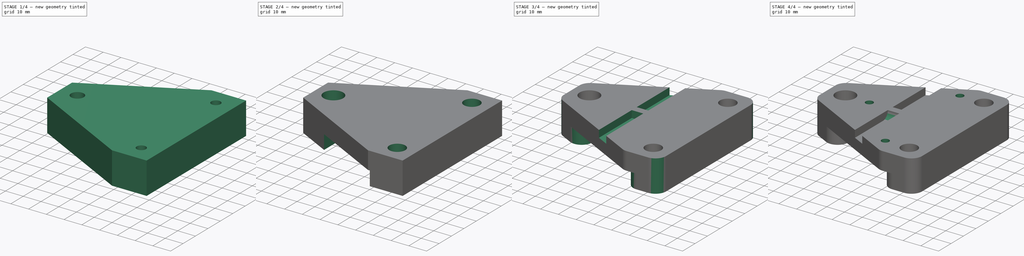
[diagram: build sequence overview — one tinted view per stage of 4, left to right]
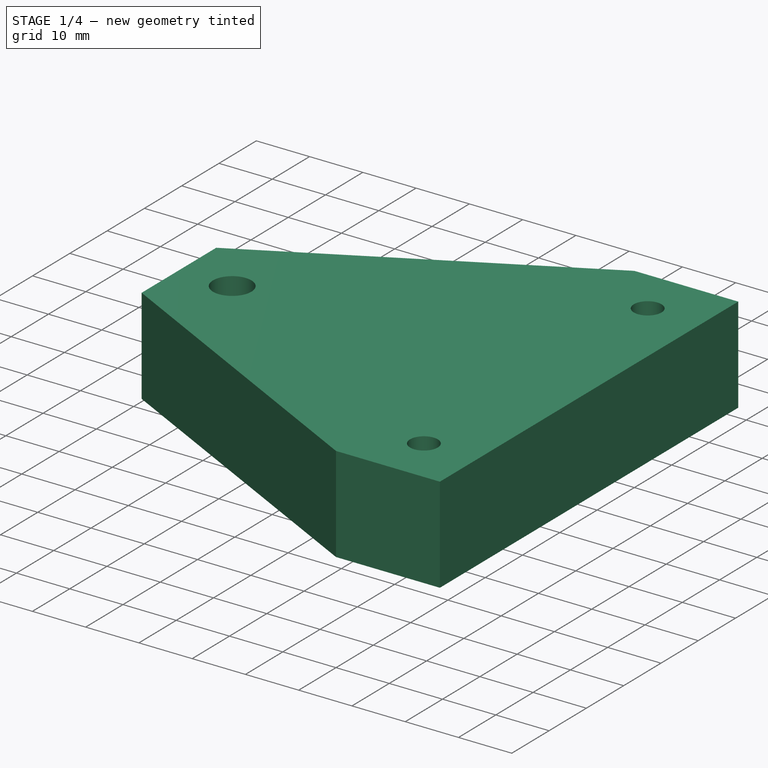
[diagram: stage 1 of 4 — iso view after this stage's code; geometry added in this stage tinted green]
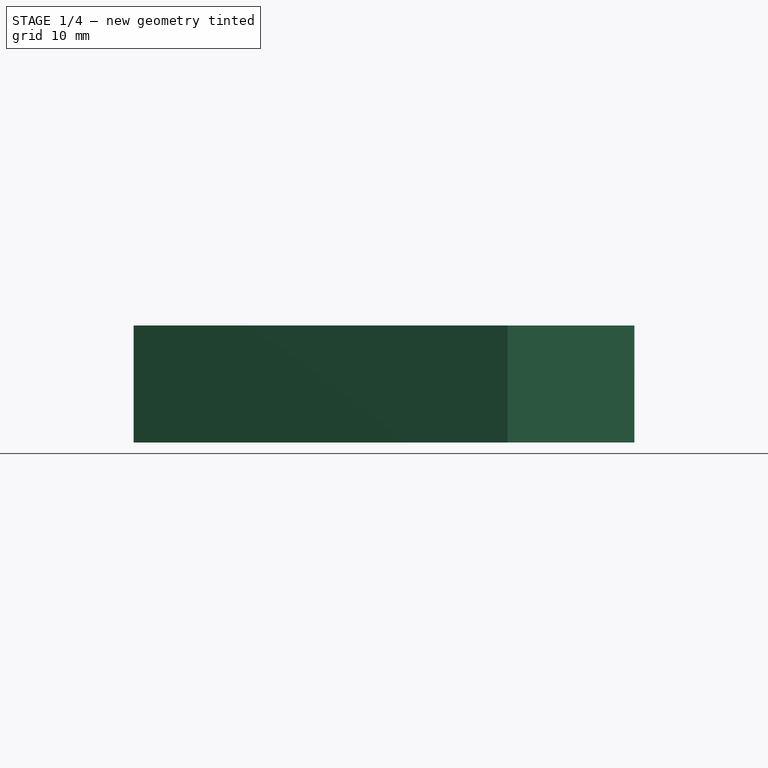
[diagram: stage 1 of 4 — front view after this stage's code; geometry added in this stage tinted green]
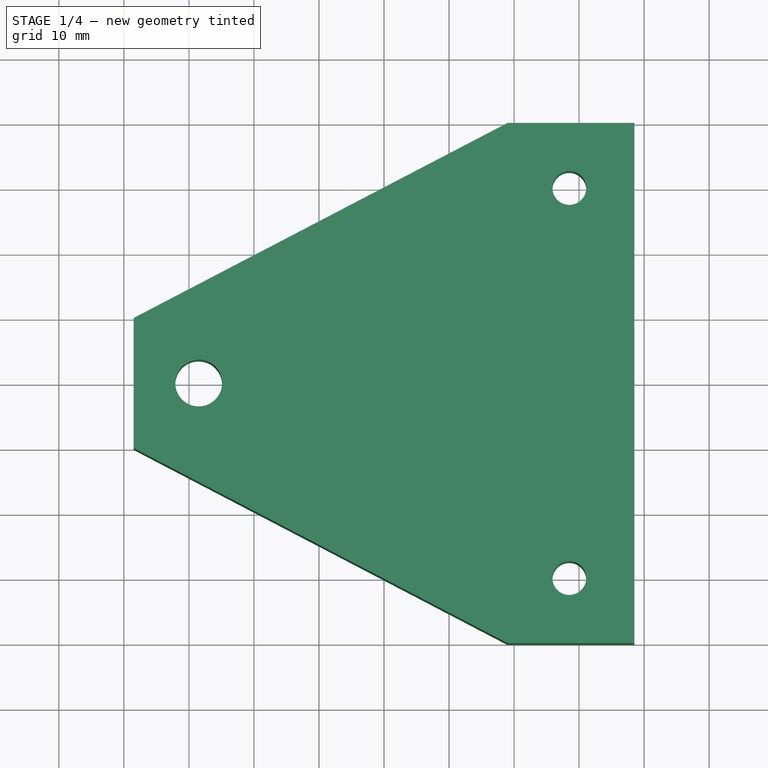
[diagram: stage 1 of 4 — top view after this stage's code; geometry added in this stage tinted green]
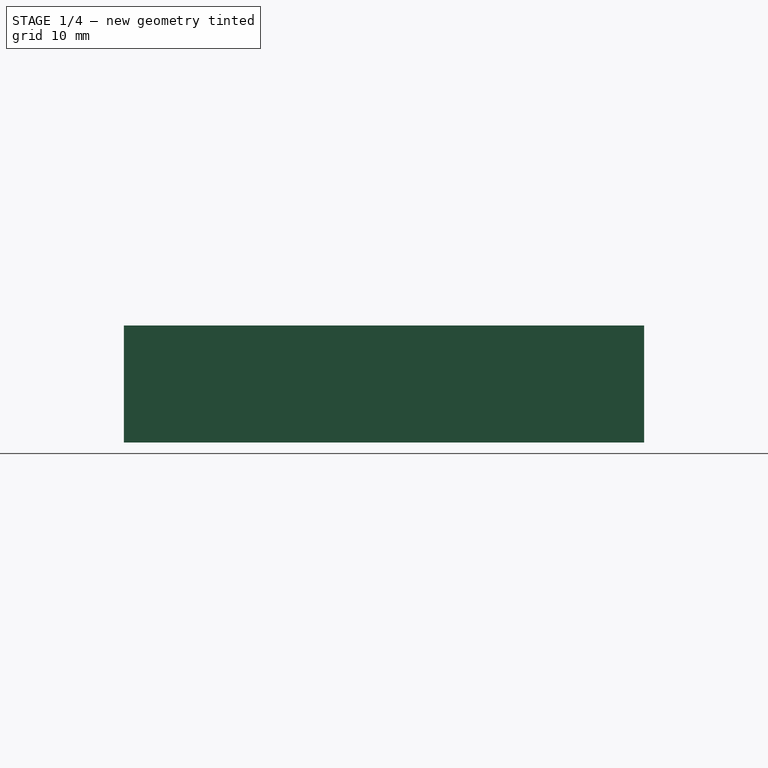
[diagram: stage 1 of 4 — right view after this stage's code; geometry added in this stage tinted green]
FCSTD DOCUMENT  (FreeCAD 1.0R39109 (Git))
Label: ARMTargetGantryV2
License: All rights reserved
LicenseURL: https://en.wikipedia.org/wiki/All_rights_reserved
objects: Sketcher::SketchObject×7, PartDesign::Pocket×5, PartDesign::Fillet×3, PartDesign::Pad×1, PartDesign::Body×1
note: 42 computed .brp shape members not serialized (recipe doc carries the construction recipe); baked Part::Feature solids carry a one-line shape summary decoded from their .brp

FEATURE [Sketcher::SketchObject] Sketch
  ArcFitTolerance = 1e-06
  AttachmentSupport = -> [XY_Plane]
  FullyConstrained = true
  MakeInternals = false
  MapMode = 5
  sketch-geometry (29):
    g0: LineSegment [constr] StartX=-19 StartY=-100 StartZ=0 EndX=19 EndY=-100 EndZ=0
    g1: LineSegment [constr] StartX=19 StartY=-100 StartZ=0 EndX=19 EndY=100 EndZ=0
    g2: LineSegment [constr] StartX=19 StartY=100 StartZ=0 EndX=-19 EndY=100 EndZ=0
    g3: LineSegment [constr] StartX=-19 StartY=100 StartZ=0 EndX=-19 EndY=-100 EndZ=0
    g4: GeomPoint [constr] X=0 Y=0 Z=0
    g5: LineSegment [constr] StartX=-4 StartY=-100 StartZ=0 EndX=4 EndY=-100 EndZ=0
    g6: LineSegment [constr] StartX=4 StartY=-100 StartZ=0 EndX=4 EndY=100 EndZ=0
    g7: LineSegment [constr] StartX=4 StartY=100 StartZ=0 EndX=-4 EndY=100 EndZ=0
    g8: LineSegment [constr] StartX=-4 StartY=100 StartZ=0 EndX=-4 EndY=-100 EndZ=0
    g9: GeomPoint [constr] X=0 Y=0 Z=0
    g10: LineSegment [constr] StartX=0 StartY=0 StartZ=0 EndX=-19 EndY=-3.7e-15 EndZ=0
    g11: LineSegment [constr] StartX=-19 StartY=-3.7e-15 StartZ=0 EndX=-28.5 EndY=0 EndZ=0
    g12: LineSegment [constr] StartX=0 StartY=0 StartZ=0 EndX=19 EndY=-3.7e-15 EndZ=0
    g13: LineSegment [constr] StartX=19 StartY=-3.7e-15 StartZ=0 EndX=28.5 EndY=0 EndZ=0
    g14: LineSegment [constr] StartX=-28.5 StartY=0 StartZ=0 EndX=-38.5 EndY=0 EndZ=0
    g15: LineSegment StartX=-38.5 StartY=0 StartZ=0 EndX=-38.5 EndY=10 EndZ=0
    g16: LineSegment StartX=-38.5 StartY=0 StartZ=0 EndX=-38.5 EndY=-10 EndZ=0
    g17: LineSegment [constr] StartX=28.5 StartY=0 StartZ=0 EndX=28.5 EndY=30 EndZ=0
    g18: LineSegment [constr] StartX=28.5 StartY=0 StartZ=0 EndX=28.5 EndY=-30 EndZ=0
    g19: LineSegment [constr] StartX=28.5 StartY=0 StartZ=0 EndX=38.5 EndY=0 EndZ=0
    g20: LineSegment StartX=38.5 StartY=0 StartZ=0 EndX=38.5 EndY=40 EndZ=0
    g21: LineSegment StartX=38.5 StartY=0 StartZ=0 EndX=38.5 EndY=-40 EndZ=0
    g22: LineSegment StartX=38.5 StartY=40 StartZ=0 EndX=19 EndY=40 EndZ=0
    g23: LineSegment StartX=38.5 StartY=-40 StartZ=0 EndX=19 EndY=-40 EndZ=0
    g24: LineSegment StartX=-38.5 StartY=10 StartZ=0 EndX=19 EndY=40 EndZ=0
    g25: LineSegment StartX=-38.5 StartY=-10 StartZ=0 EndX=19 EndY=-40 EndZ=0
    g26: Circle CenterX=-28.5 CenterY=0 CenterZ=0 NormalX=0 NormalY=0 NormalZ=1 AngleXU=0 Radius=3.6
    g27: Circle CenterX=28.5 CenterY=-30 CenterZ=0 NormalX=0 NormalY=0 NormalZ=1 AngleXU=0 Radius=2.6
    g28: Circle CenterX=28.5 CenterY=30 CenterZ=0 NormalX=0 NormalY=0 NormalZ=1 AngleXU=0 Radius=2.6
  constraints (74):
    c: Coincident(g0,g1)
    c: Coincident(g1,g2)
    c: Coincident(g2,g3)
    c: Coincident(g3,g0)
    c: Horizontal(g0)
    c: Horizontal(g2)
    c: Vertical(g1)
    c: Vertical(g3)
    c: Symmetric(g2,g0,g4)
    c: Distance(g1,g3) = 38
    c: Distance(g0,g2) = 200
    c: Coincident(g4,g-1)
    c: Coincident(g5,g6)
    c: Coincident(g6,g7)
    c: Coincident(g7,g8)
    c: Coincident(g8,g5)
    c: Horizontal(g5)
    c: Horizontal(g7)
    c: Vertical(g6)
    c: Vertical(g8)
    c: Symmetric(g7,g5,g9)
    c: Distance(g6,g8) = 8
    c: Coincident(g9,g4)
    c: PointOnObject(g6,g2)
    c: Coincident(g10,g4)
    c: Symmetric(g3,g3,g10)
    c: Distance(g11) = 9.5
    c: Coincident(g11,g10)
    c: PointOnObject(g11,g-1)
    c: Coincident(g12,g4)
    c: Symmetric(g1,g1,g12)
    c: Distance(g13) = 9.5
    c: Coincident(g13,g12)
    c: PointOnObject(g13,g-1)
    c: Distance(g14) = 10
    c: Coincident(g14,g11)
    c: PointOnObject(g14,g-1)
    c: Distance(g15) = 10
    c: Coincident(g15,g14)
    c: Vertical(g15)
    c: Distance(g16) = 10
    c: Coincident(g16,g14)
    c: Vertical(g16)
    c: Distance(g17) = 30
    c: Coincident(g17,g13)
    c: Vertical(g17)
    c: Distance(g18) = 30
    c: Coincident(g18,g13)
    c: Vertical(g18)
    c: Distance(g19) = 10
    c: Coincident(g19,g13)
    c: PointOnObject(g19,g-1)
    c: Distance(g20) = 40
    c: Coincident(g20,g19)
    c: Vertical(g20)
    c: Distance(g21) = 40
    c: Coincident(g21,g19)
    c: Vertical(g21)
    c: Coincident(g22,g20)
    c: PointOnObject(g22,g1)
    c: Horizontal(g22)
    c: Coincident(g23,g21)
    c: PointOnObject(g23,g1)
    c: Horizontal(g23)
    c: Coincident(g24,g15)
    c: Coincident(g24,g22)
    c: Coincident(g25,g16)
    c: Coincident(g25,g23)
    c: Diameter(g26) = 7.2
    c: Coincident(g26,g11)
    c: Diameter(g27) = 5.2
    c: Coincident(g27,g18)
    c: Diameter(g28) = 5.2
    c: Coincident(g28,g17)
FEATURE [PartDesign::Pad] Pad
  Direction = (0,0,1)
  Length = 18
  Length2 = 10
  Profile = -> Sketch
  ReferenceAxis = -> Sketch [N_Axis]
  Refine = true
  Suppressed = false
  Type = 0
FEATURE [Sketcher::SketchObject] Sketch001
  ArcFitTolerance = 1e-06
  AttachmentSupport = -> [Pad]
  ExternalGeometry = -> [Pad]
  FullyConstrained = true
  MakeInternals = false
  MapMode = 5
  Placement = pos=(0,0,0) rot=(1,0,0;3.14159rad)
  sketch-geometry (1):
    g0: Circle CenterX=-28.5 CenterY=0 CenterZ=0 NormalX=0 NormalY=0 NormalZ=1 AngleXU=0 Radius=3.6
  constraints (2):
    c: Diameter(g0) = 7.2
    c: Coincident(g0,g-3)
FEATURE [PartDesign::Pocket] Pocket
  BaseFeature = -> Pad
  Direction = (0,0,1)
  Length = 3
  Length2 = 5
  Profile = -> Sketch001
  ReferenceAxis = -> Sketch001 [N_Axis]
  Refine = true
  Suppressed = false
  Type = 0
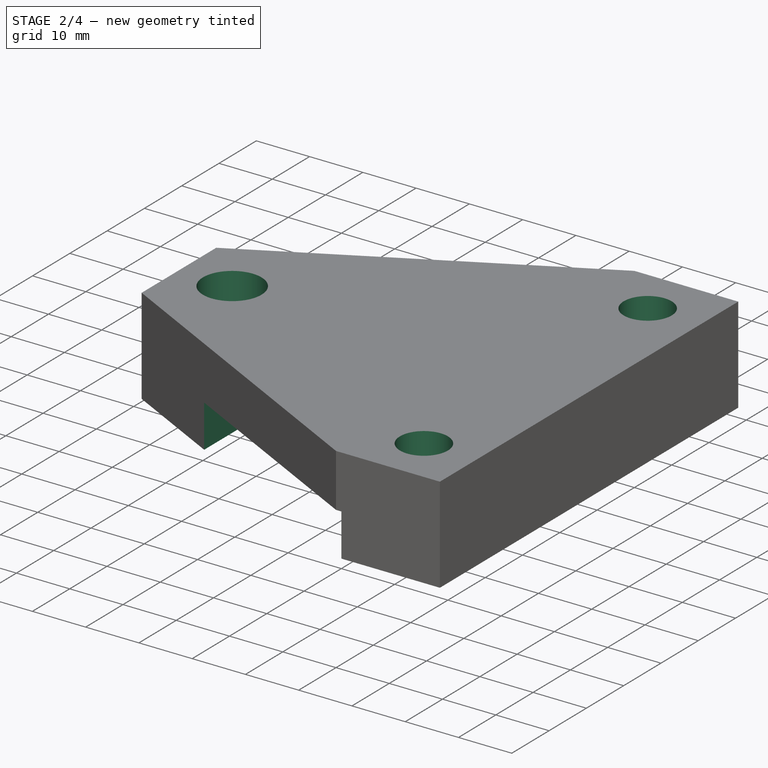
[diagram: stage 2 of 4 — iso view after this stage's code; geometry added in this stage tinted green]
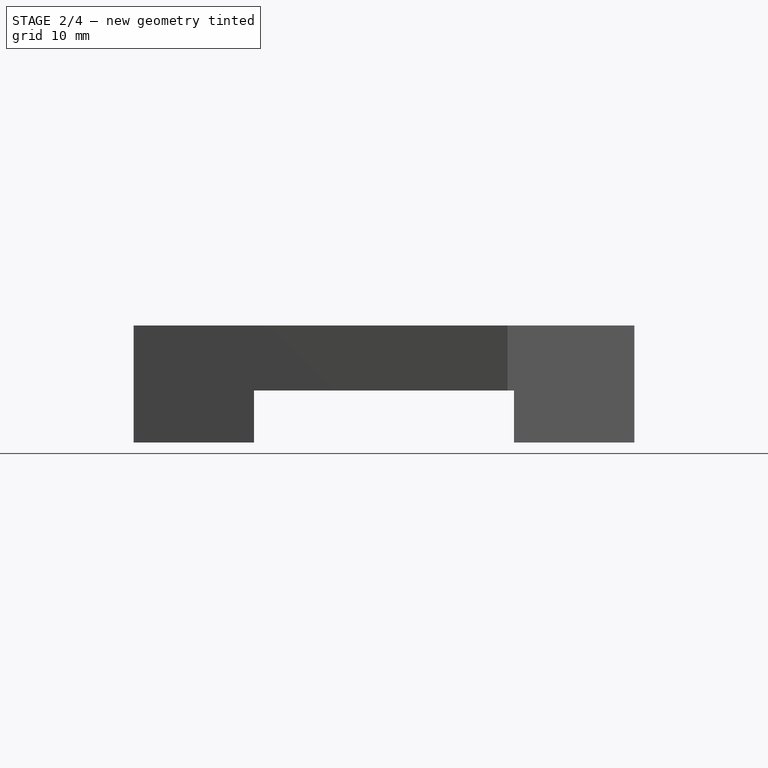
[diagram: stage 2 of 4 — front view after this stage's code; geometry added in this stage tinted green]
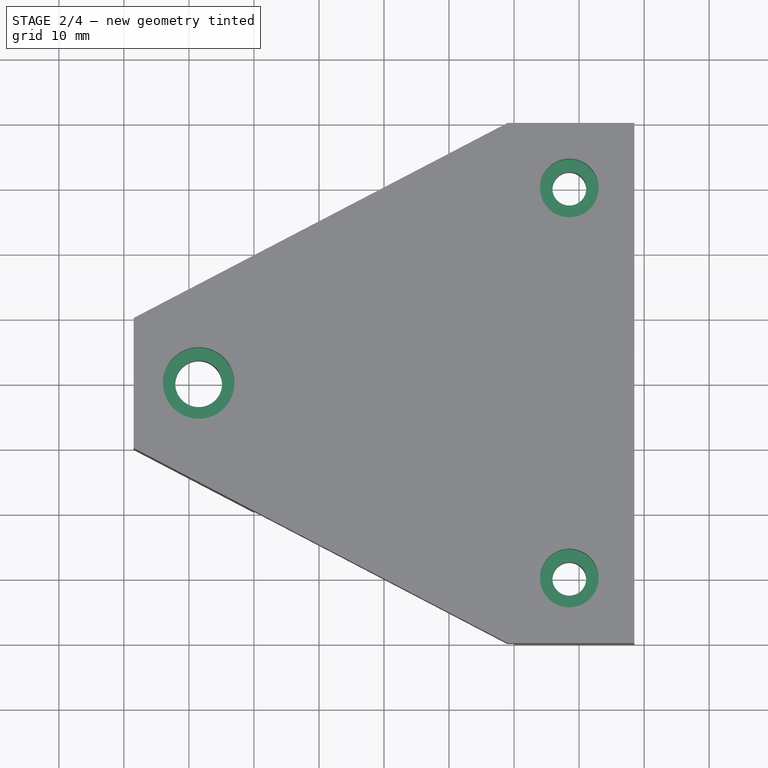
[diagram: stage 2 of 4 — top view after this stage's code; geometry added in this stage tinted green]
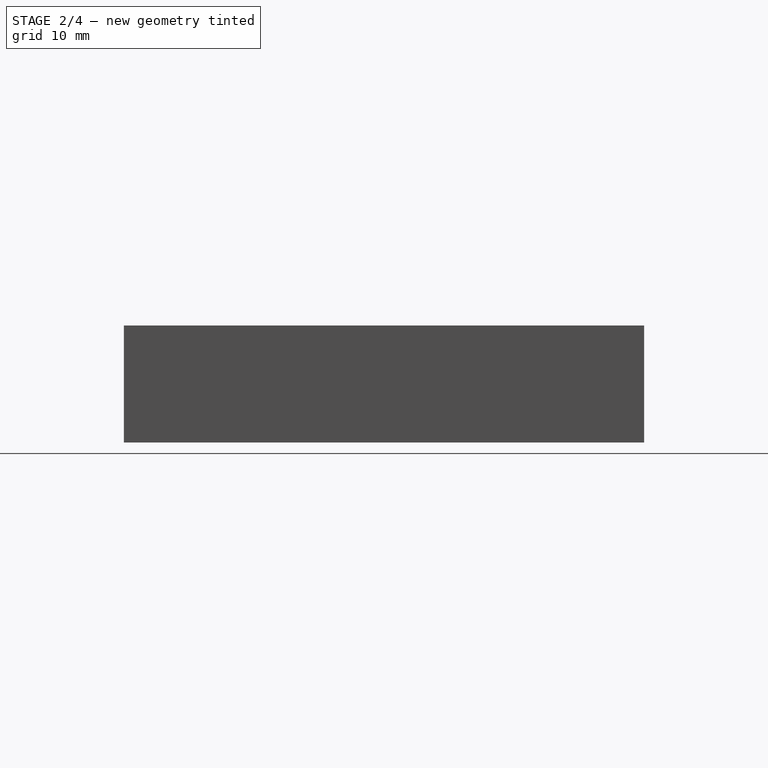
[diagram: stage 2 of 4 — right view after this stage's code; geometry added in this stage tinted green]
FEATURE [Sketcher::SketchObject] Sketch002
  ArcFitTolerance = 1e-06
  AttachmentSupport = -> [Pocket]
  FullyConstrained = true
  MakeInternals = false
  MapMode = 5
  Placement = pos=(0,0,0) rot=(1,0,0;3.14159rad)
  sketch-geometry (5):
    g0: LineSegment StartX=-20 StartY=-50 StartZ=0 EndX=20 EndY=-50 EndZ=0
    g1: LineSegment StartX=20 StartY=-50 StartZ=0 EndX=20 EndY=50 EndZ=0
    g2: LineSegment StartX=20 StartY=50 StartZ=0 EndX=-20 EndY=50 EndZ=0
    g3: LineSegment StartX=-20 StartY=50 StartZ=0 EndX=-20 EndY=-50 EndZ=0
    g4: GeomPoint [constr] X=0 Y=0 Z=0
  constraints (12):
    c: Coincident(g0,g1)
    c: Coincident(g1,g2)
    c: Coincident(g2,g3)
    c: Coincident(g3,g0)
    c: Horizontal(g0)
    c: Horizontal(g2)
    c: Vertical(g1)
    c: Vertical(g3)
    c: Symmetric(g2,g0,g4)
    c: Distance(g1,g3) = 40
    c: Distance(g0,g2) = 100
    c: Coincident(g4,g-1)
FEATURE [PartDesign::Pocket] Pocket001
  BaseFeature = -> Pocket
  Direction = (0,0,1)
  Length = 8
  Length2 = 5
  Profile = -> Sketch002
  ReferenceAxis = -> Sketch002 [N_Axis]
  Refine = true
  Suppressed = false
  Type = 0
FEATURE [Sketcher::SketchObject] Sketch003
  ArcFitTolerance = 1e-06
  AttachmentSupport = -> [Pocket001]
  ExternalGeometry = -> [Pocket001]
  FullyConstrained = true
  MakeInternals = false
  MapMode = 5
  Placement = pos=(0,0,18) rot=(0,0,1;0rad)
  sketch-geometry (3):
    g0: Circle CenterX=-28.5 CenterY=0 CenterZ=0 NormalX=0 NormalY=0 NormalZ=1 AngleXU=0 Radius=5.5
    g1: Circle CenterX=28.5 CenterY=30 CenterZ=0 NormalX=0 NormalY=0 NormalZ=1 AngleXU=0 Radius=4.5
    g2: Circle CenterX=28.5 CenterY=-30 CenterZ=0 NormalX=0 NormalY=0 NormalZ=1 AngleXU=0 Radius=4.5
  constraints (6):
    c: Diameter(g0) = 11
    c: Coincident(g0,g-5)
    c: Diameter(g1) = 9
    c: Coincident(g1,g-3)
    c: Diameter(g2) = 9
    c: Coincident(g2,g-4)
FEATURE [PartDesign::Pocket] Pocket002
  BaseFeature = -> Pocket001
  Direction = (0,0,-1)
  Length = 6
  Length2 = 5
  Profile = -> Sketch003
  ReferenceAxis = -> Sketch003 [N_Axis]
  Refine = true
  Suppressed = false
  Type = 0
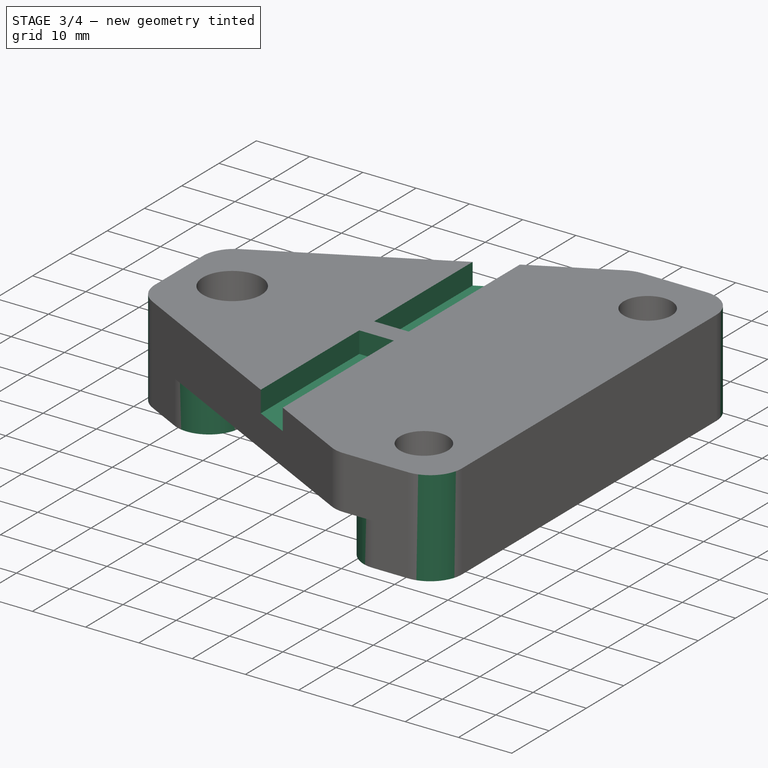
[diagram: stage 3 of 4 — iso view after this stage's code; geometry added in this stage tinted green]
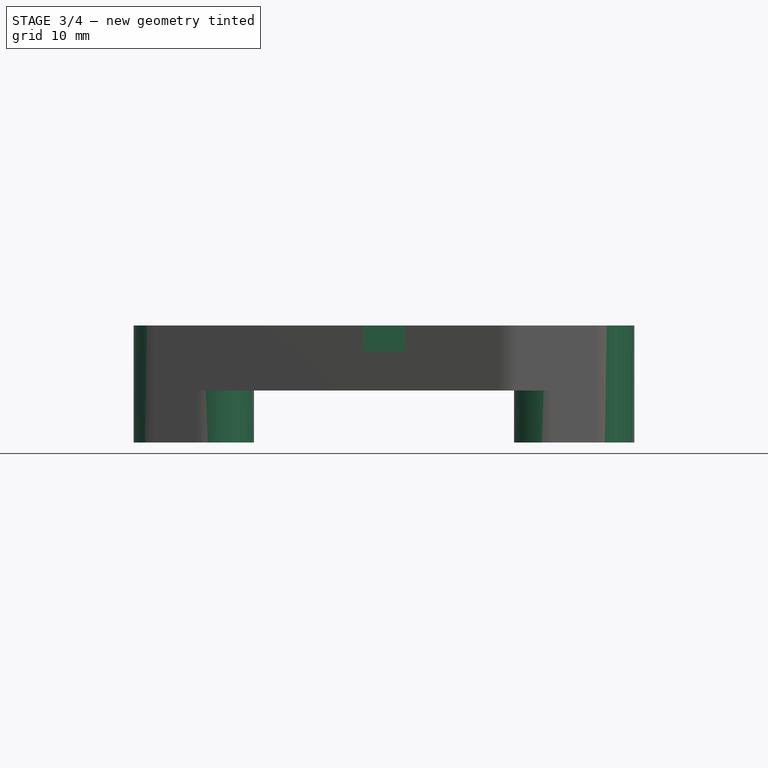
[diagram: stage 3 of 4 — front view after this stage's code; geometry added in this stage tinted green]
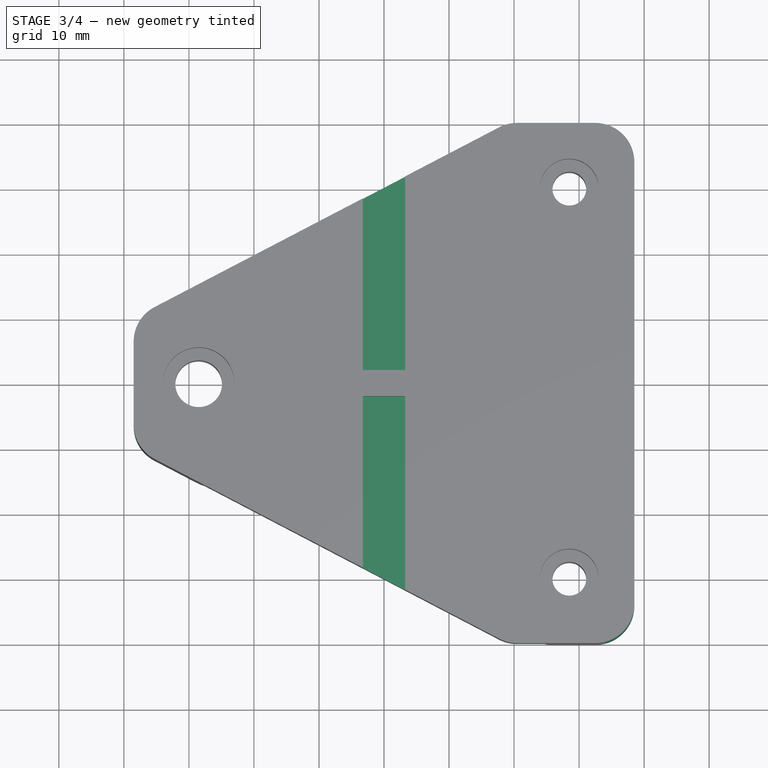
[diagram: stage 3 of 4 — top view after this stage's code; geometry added in this stage tinted green]
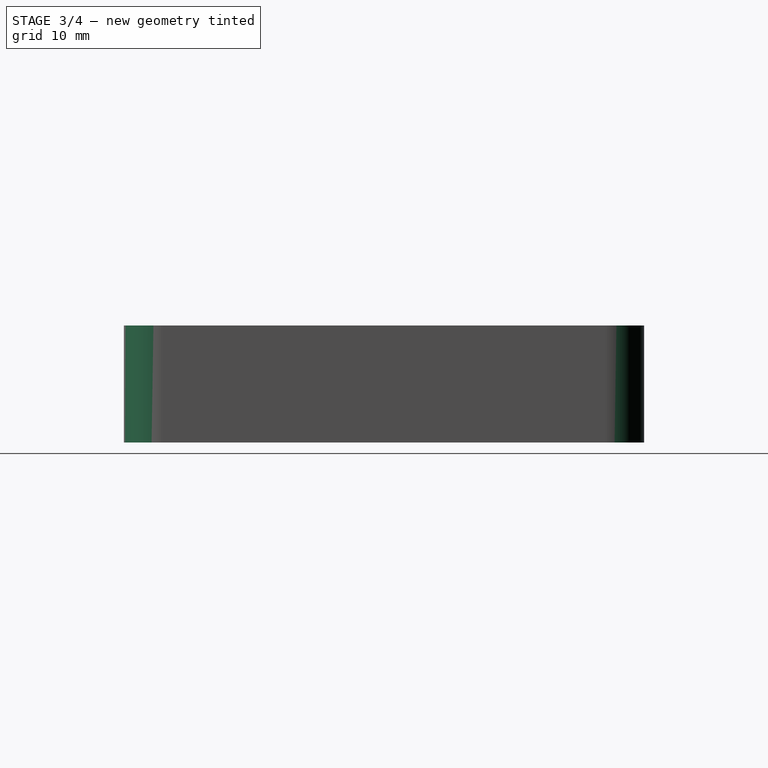
[diagram: stage 3 of 4 — right view after this stage's code; geometry added in this stage tinted green]
FEATURE [PartDesign::Fillet] Fillet
  Base = -> Pocket002 [Edge33,Edge18,Edge12,Edge2]
  BaseFeature = -> Pocket002
  Radius = 6
  Refine = true
  SupportTransform = false
  Suppressed = false
  UseAllEdges = false
FEATURE [PartDesign::Fillet] Fillet001
  Base = -> Fillet [Edge3,Edge16,Edge7,Edge38,Edge51,Edge41]
  BaseFeature = -> Fillet
  Radius = 6
  Refine = true
  SupportTransform = false
  Suppressed = false
  UseAllEdges = false
FEATURE [Sketcher::SketchObject] Sketch004
  ArcFitTolerance = 1e-06
  AttachmentSupport = -> [Fillet001]
  FullyConstrained = false
  MakeInternals = false
  MapMode = 5
  Placement = pos=(0,0,18) rot=(0,0,1;0rad)
  sketch-geometry (10):
    g0: LineSegment StartX=-3.25 StartY=-35 StartZ=0 EndX=3.25 EndY=-35 EndZ=0
    g1: LineSegment StartX=3.25 StartY=-35 StartZ=0 EndX=3.25 EndY=-2 EndZ=0
    g2: LineSegment StartX=3.25 StartY=35 StartZ=0 EndX=-3.25 EndY=35 EndZ=0
    g3: LineSegment StartX=-3.25 StartY=35 StartZ=0 EndX=-3.25 EndY=2 EndZ=0
    g4: GeomPoint [constr] X=0 Y=0 Z=0
    g5: LineSegment StartX=-3.25 StartY=-2 StartZ=0 EndX=3.25 EndY=-2 EndZ=0
    g6: LineSegment StartX=3.25 StartY=2 StartZ=0 EndX=-3.25 EndY=2 EndZ=0
    g7: GeomPoint [constr] X=0 Y=0 Z=0
    g8: LineSegment StartX=3.25 StartY=2 StartZ=0 EndX=3.25 EndY=35 EndZ=0
    g9: LineSegment StartX=-3.25 StartY=-2 StartZ=0 EndX=-3.25 EndY=-35 EndZ=0
  constraints (21):
    c: Coincident(g0,g1)
    c: Coincident(g8,g2)
    c: Coincident(g2,g3)
    c: Coincident(g9,g0)
    c: Horizontal(g0)
    c: Horizontal(g2)
    c: Vertical(g1)
    c: Vertical(g3)
    c: Symmetric(g2,g0,g4)
    c: Distance(g1,g9) = 6.5
    c: Distance(g0,g2) = 70
    c: Coincident(g4,g-1)
    c: Horizontal(g5)
    c: Horizontal(g6)
    c: Coincident(g7,g4)
    c: PointOnObject(g6,g8)
    c: PointOnObject(g5,g9)
    c: Coincident(g1,g5)
    c: PointOnObject(g8,g6)
    c: Coincident(g3,g6)
    c: PointOnObject(g9,g5)
FEATURE [PartDesign::Pocket] Pocket003
  BaseFeature = -> Fillet001
  Direction = (0,0,-1)
  Length = 4
  Length2 = 5
  Profile = -> Sketch004
  ReferenceAxis = -> Sketch004 [N_Axis]
  Refine = true
  Suppressed = false
  Type = 0
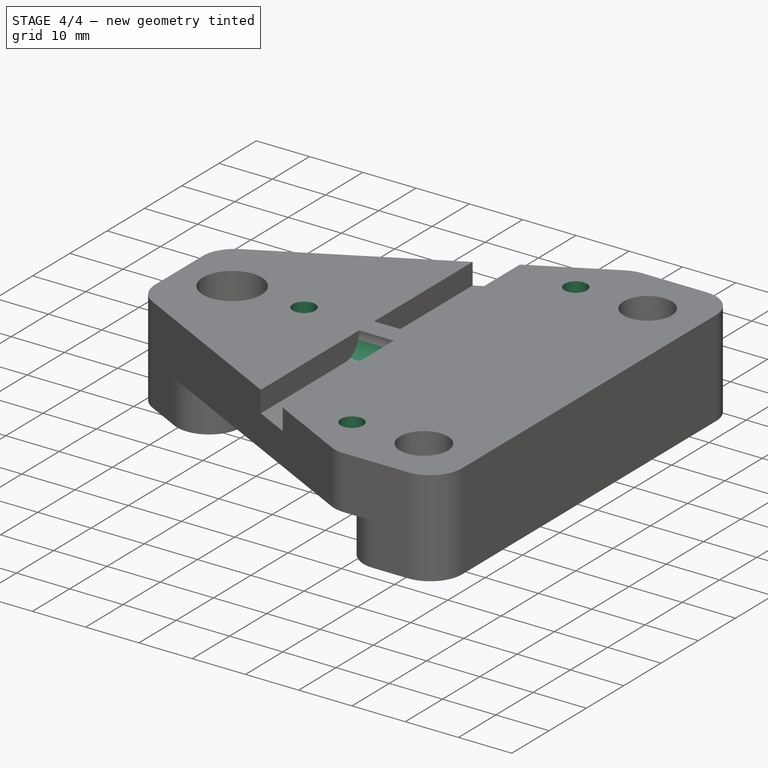
[diagram: stage 4 of 4 — iso view after this stage's code; geometry added in this stage tinted green]
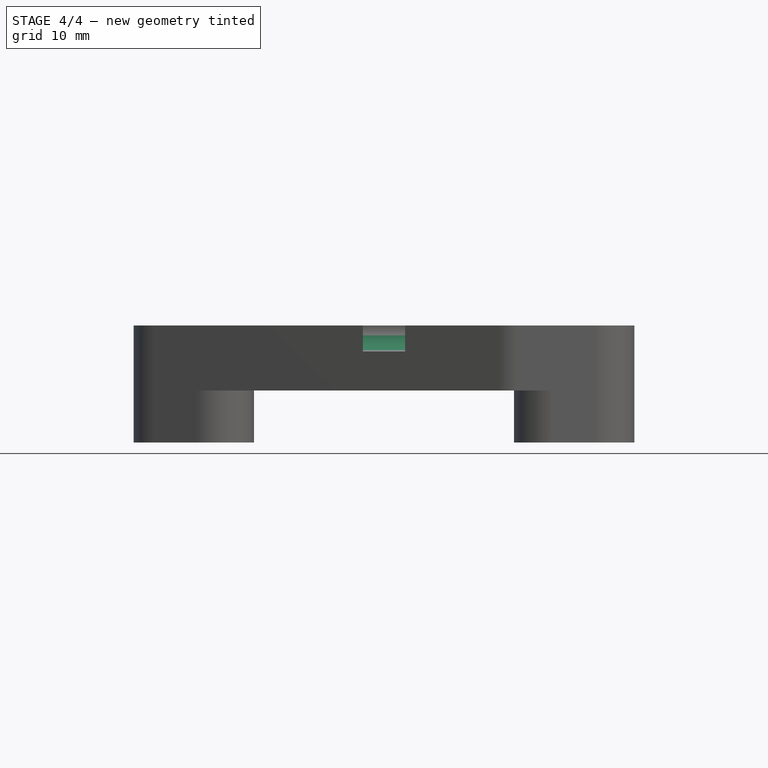
[diagram: stage 4 of 4 — front view after this stage's code; geometry added in this stage tinted green]
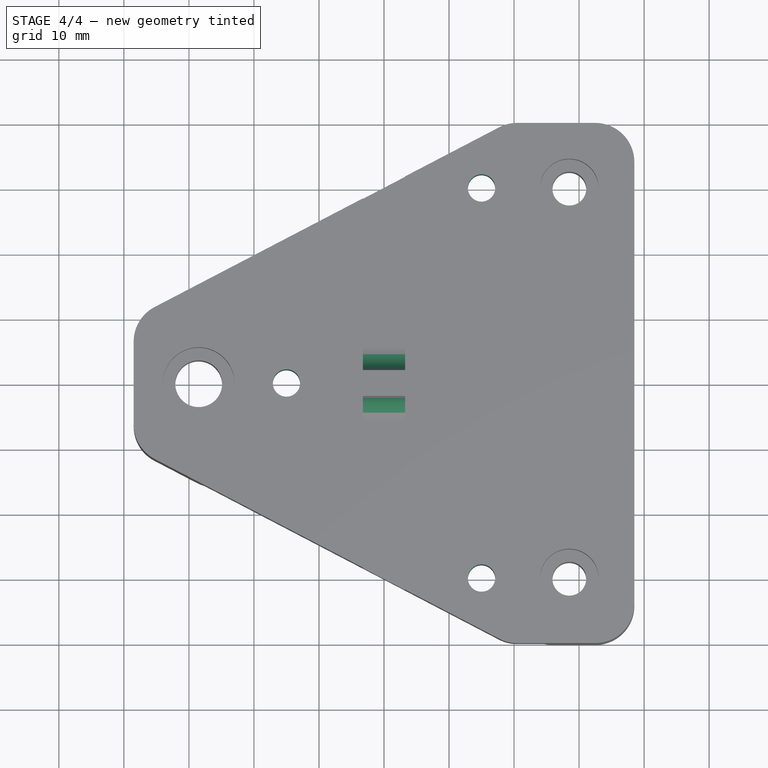
[diagram: stage 4 of 4 — top view after this stage's code; geometry added in this stage tinted green]
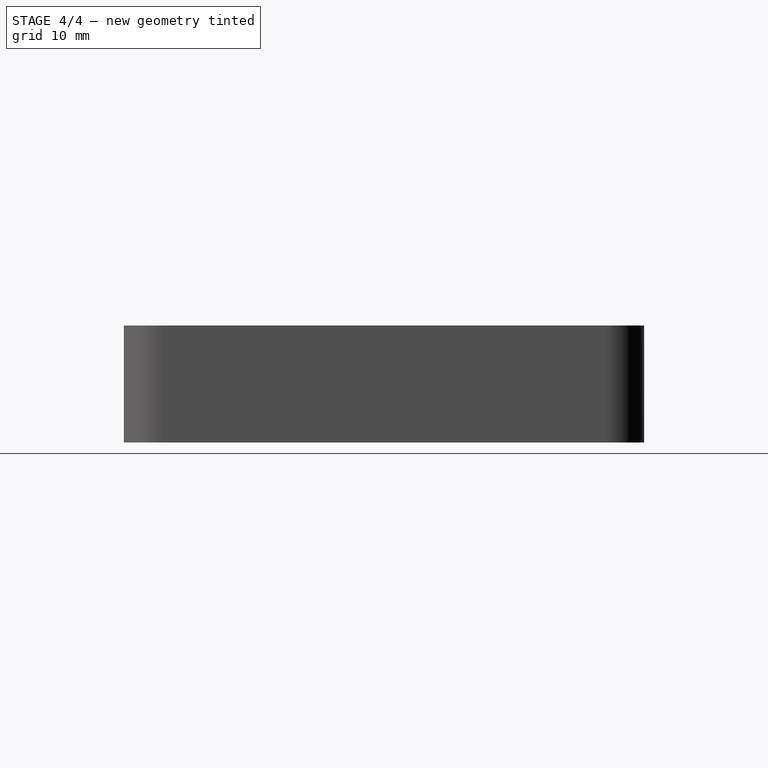
[diagram: stage 4 of 4 — right view after this stage's code; geometry added in this stage tinted green]
FEATURE [Sketcher::SketchObject] Sketch005
  ArcFitTolerance = 1e-06
  AttachmentSupport = -> [Pocket003]
  FullyConstrained = true
  MakeInternals = false
  MapMode = 5
  Placement = pos=(0,0,18) rot=(0,0,1;0rad)
  sketch-geometry (7):
    g0: LineSegment [constr] StartX=0 StartY=0 StartZ=0 EndX=-15 EndY=0 EndZ=0
    g1: LineSegment [constr] StartX=0 StartY=0 StartZ=0 EndX=15 EndY=0 EndZ=0
    g2: LineSegment [constr] StartX=15 StartY=0 StartZ=0 EndX=15 EndY=30 EndZ=0
    g3: LineSegment [constr] StartX=15 StartY=0 StartZ=0 EndX=15 EndY=-30 EndZ=0
    g4: Circle CenterX=-15 CenterY=0 CenterZ=0 NormalX=0 NormalY=0 NormalZ=1 AngleXU=0 Radius=2.1
    g5: Circle CenterX=15 CenterY=-30 CenterZ=0 NormalX=0 NormalY=0 NormalZ=1 AngleXU=0 Radius=2.1
    g6: Circle CenterX=15 CenterY=30 CenterZ=0 NormalX=0 NormalY=0 NormalZ=1 AngleXU=0 Radius=2.1
  constraints (18):
    c: Distance(g0) = 15
    c: Coincident(g0,g-1)
    c: PointOnObject(g0,g-1)
    c: Distance(g1) = 15
    c: Coincident(g1,g0)
    c: PointOnObject(g1,g-1)
    c: Distance(g2) = 30
    c: Coincident(g2,g1)
    c: Vertical(g2)
    c: Distance(g3) = 30
    c: Coincident(g3,g1)
    c: Vertical(g3)
    c: Diameter(g4) = 4.2
    c: Coincident(g4,g0)
    c: Diameter(g5) = 4.2
    c: Coincident(g5,g3)
    c: Diameter(g6) = 4.2
    c: Coincident(g6,g2)
FEATURE [PartDesign::Pocket] Pocket004
  BaseFeature = -> Pocket003
  Direction = (0,0,-1)
  Length = 10
  Length2 = 5
  Profile = -> Sketch005
  ReferenceAxis = -> Sketch005 [N_Axis]
  Refine = true
  Suppressed = false
  Type = 0
FEATURE [Sketcher::SketchObject] Sketch006
  ArcFitTolerance = 1e-06
  AttachmentSupport = -> [Pocket004]
  ExternalGeometry = -> [Pocket004]
  FullyConstrained = true
  MakeInternals = false
  MapMode = 5
  Placement = pos=(0,0,18) rot=(0,0,1;0rad)
FEATURE [PartDesign::Fillet] Fillet002
  Base = -> Pocket004 [Edge95,Edge63]
  BaseFeature = -> Pocket004
  Radius = 3.75
  Refine = true
  SupportTransform = false
  Suppressed = false
  UseAllEdges = false
FEATURE [PartDesign::Body] Body
  AllowCompound = false
  Group = -> [Sketch,Pad,Sketch001,Pocket,Sketch002,Pocket001,Sketch003,Pocket002,Fillet,Fillet001,Sketch004,Pocket003,Sketch005,Pocket004,Sketch006,Fillet002]
  Origin = -> Origin
  Tip = -> Fillet002
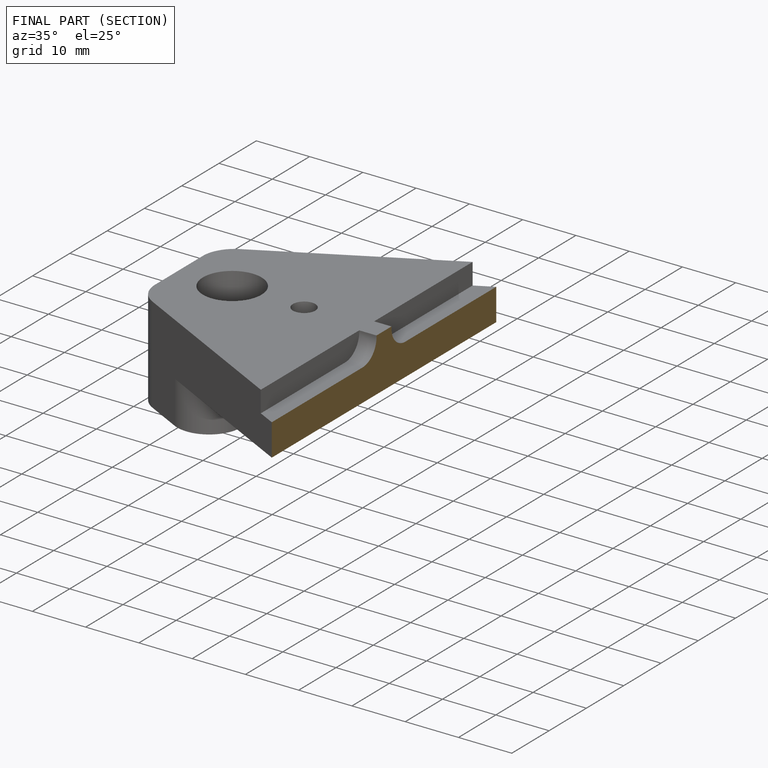
[diagram: finished part — half-section view (interior)]
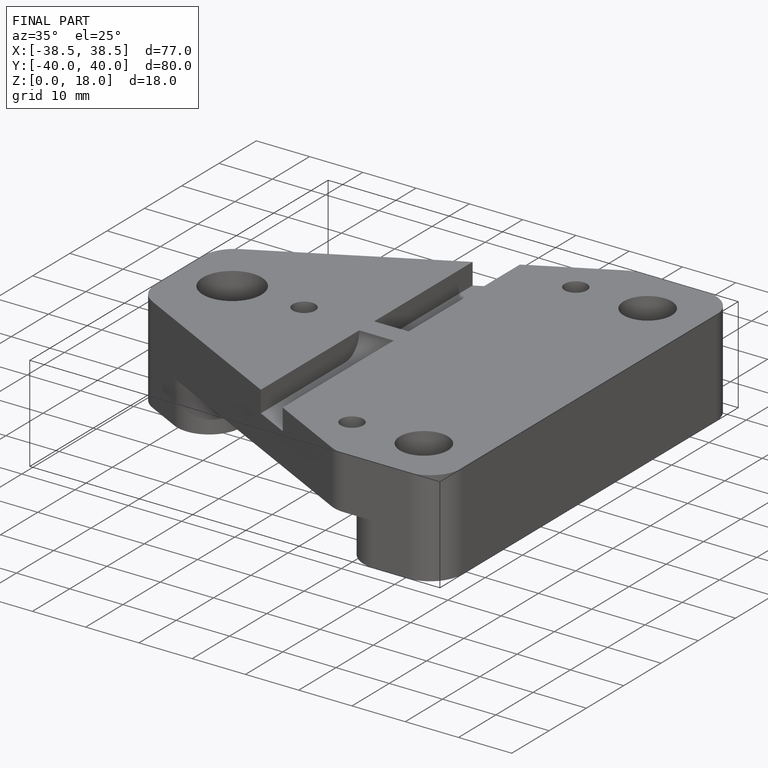
[diagram: finished part — iso view with bounding-box wireframe]
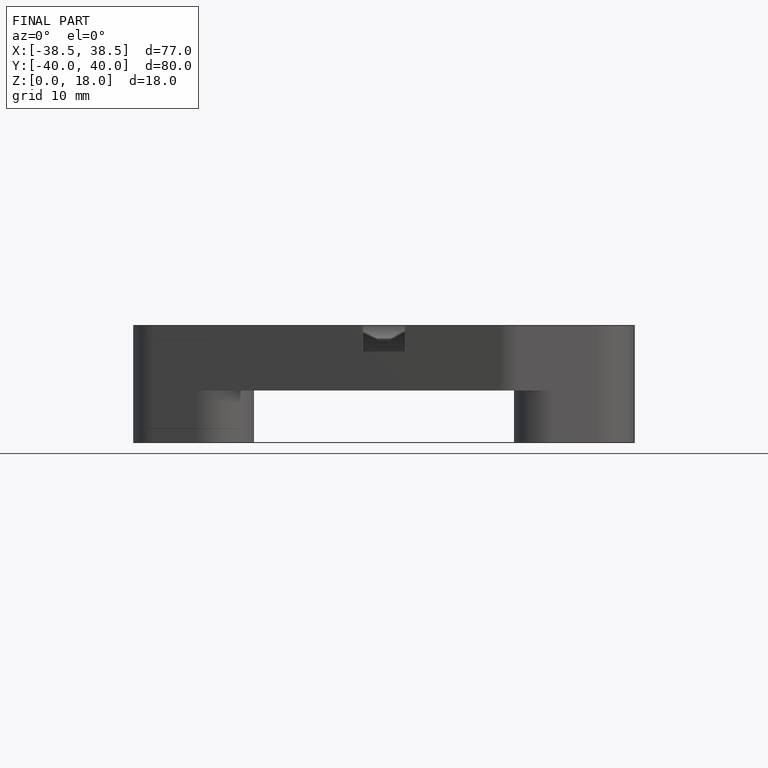
[diagram: finished part — front view with bounding-box wireframe]
